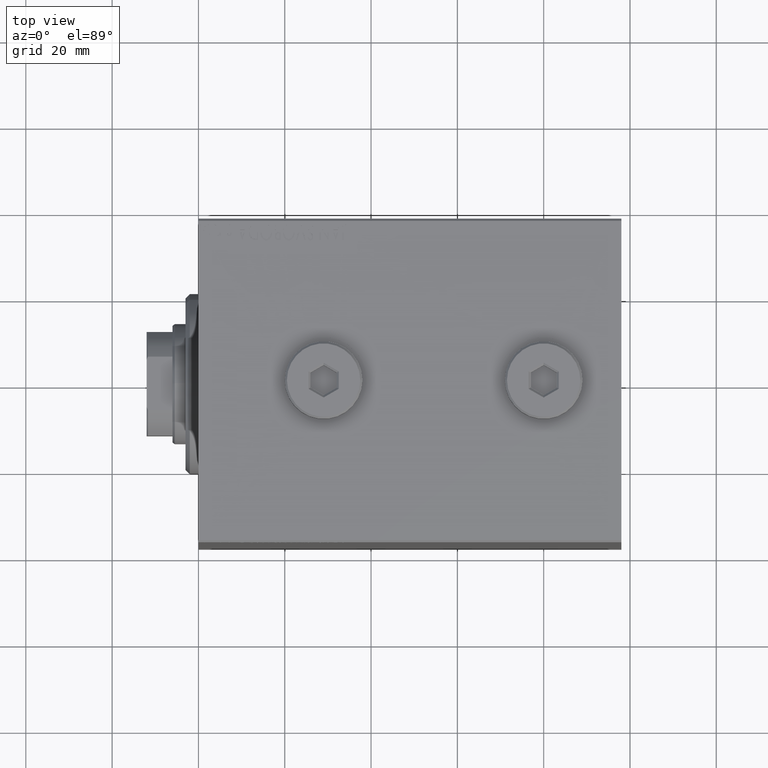
[diagram: clean part render]
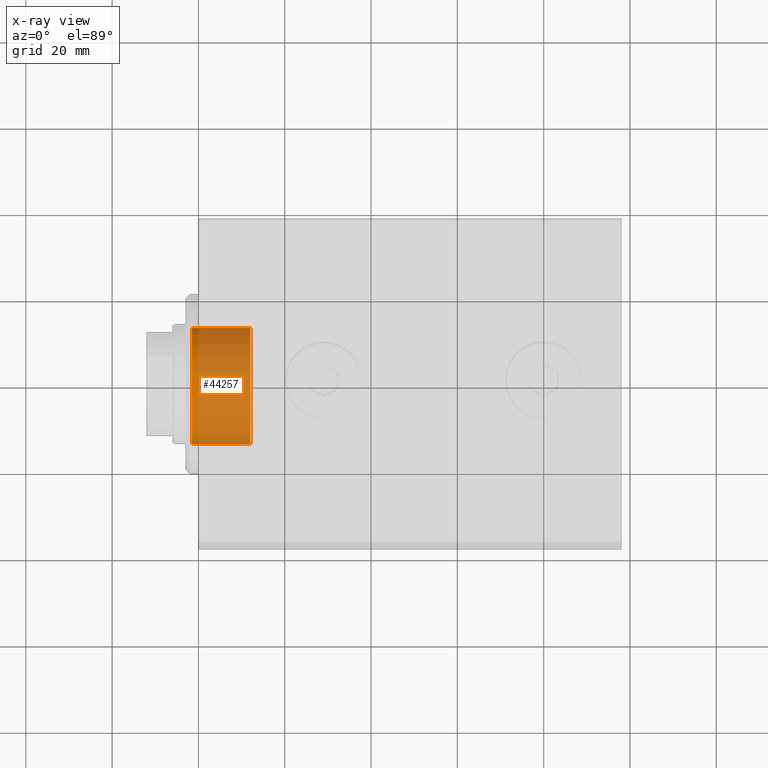
[diagram: x-ray — body ghosted, one internal face saturated and labeled with its STEP entity id]
A machine part, top view, then the same camera in x-ray: the body is ghosted and one INTERNAL B-rep face — a face not visible from any outside direction — is saturated and labeled: STEP entity #44257.
In plain terms, the highlighted cylindrical surface (partial cylindrical patch) has radius 14 mm, axis along (-1, 0, 0).
Its self-contained STEP definition (entity closure, byte-faithful):
#44 = CYLINDRICAL_SURFACE ( 'NONE', #8349, 14.00000000000000178 ) ;
#467 = VERTEX_POINT ( 'NONE', #27096 ) ;
#1929 = VECTOR ( 'NONE', #39252, 1000.000000000000000 ) ;
#2965 = CARTESIAN_POINT ( 'NONE',  ( -12.00000000000000000, 0.000000000000000000, -14.00000000000000178 ) ) ;
#4847 = LINE ( 'NONE', #25502, #1929 ) ;
#5629 = DIRECTION ( 'NONE',  ( 0.000000000000000000, 0.000000000000000000, -1.000000000000000000 ) ) ;
#6787 = AXIS2_PLACEMENT_3D ( 'NONE', #37075, #29736, #22410 ) ;
#7843 = ORIENTED_EDGE ( 'NONE', *, *, #23635, .F. ) ;
#8349 = AXIS2_PLACEMENT_3D ( 'NONE', #10779, #28218, #11223 ) ;
#10779 = CARTESIAN_POINT ( 'NONE',  ( -12.00000000000000000, 0.000000000000000000, 0.000000000000000000 ) ) ;
#10837 = EDGE_CURVE ( 'NONE', #16862, #36233, #31892, .T. ) ;
#11223 = DIRECTION ( 'NONE',  ( 0.000000000000000000, 0.000000000000000000, -1.000000000000000000 ) ) ;
#11398 = AXIS2_PLACEMENT_3D ( 'NONE', #26494, #26725, #5629 ) ;
#13039 = ORIENTED_EDGE ( 'NONE', *, *, #36339, .T. ) ;
#16169 = EDGE_CURVE ( 'NONE', #16862, #467, #4847, .T. ) ;
#16862 = VERTEX_POINT ( 'NONE', #20777 ) ;
#18359 = FACE_OUTER_BOUND ( 'NONE', #29569, .T. ) ;
#18709 = ORIENTED_EDGE ( 'NONE', *, *, #16169, .T. ) ;
#20124 = LINE ( 'NONE', #20357, #40930 ) ;
#20357 = CARTESIAN_POINT ( 'NONE',  ( -12.00000000000000000, 0.000000000000000000, -14.00000000000000178 ) ) ;
#20777 = CARTESIAN_POINT ( 'NONE',  ( -12.00000000000000000, 1.714505518806294835E-15, 14.00000000000000178 ) ) ;
#22410 = DIRECTION ( 'NONE',  ( 0.000000000000000000, 0.000000000000000000, -1.000000000000000000 ) ) ;
#22941 = CIRCLE ( 'NONE', #6787, 14.00000000000000178 ) ;
#23635 = EDGE_CURVE ( 'NONE', #36233, #43068, #20124, .T. ) ;
#24310 = ORIENTED_EDGE ( 'NONE', *, *, #10837, .F. ) ;
#25502 = CARTESIAN_POINT ( 'NONE',  ( -12.00000000000000000, 1.714505518806294835E-15, 14.00000000000000178 ) ) ;
#26494 = CARTESIAN_POINT ( 'NONE',  ( -12.00000000000000000, 0.000000000000000000, 0.000000000000000000 ) ) ;
#26725 = DIRECTION ( 'NONE',  ( 1.000000000000000000, 0.000000000000000000, 0.000000000000000000 ) ) ;
#27096 = CARTESIAN_POINT ( 'NONE',  ( 1.499999999999999556, 1.714505518806294835E-15, 14.00000000000000178 ) ) ;
#27599 = CARTESIAN_POINT ( 'NONE',  ( 1.499999999999999556, 0.000000000000000000, -14.00000000000000178 ) ) ;
#28218 = DIRECTION ( 'NONE',  ( 1.000000000000000000, -0.000000000000000000, -0.000000000000000000 ) ) ;
#29569 = EDGE_LOOP ( 'NONE', ( #24310, #18709, #13039, #7843 ) ) ;
#29736 = DIRECTION ( 'NONE',  ( 1.000000000000000000, 0.000000000000000000, 0.000000000000000000 ) ) ;
#31892 = CIRCLE ( 'NONE', #11398, 14.00000000000000178 ) ;
#36233 = VERTEX_POINT ( 'NONE', #2965 ) ;
#36339 = EDGE_CURVE ( 'NONE', #467, #43068, #22941, .T. ) ;
#37075 = CARTESIAN_POINT ( 'NONE',  ( 1.499999999999999556, 0.000000000000000000, 0.000000000000000000 ) ) ;
#39252 = DIRECTION ( 'NONE',  ( 1.000000000000000000, -0.000000000000000000, -0.000000000000000000 ) ) ;
#40930 = VECTOR ( 'NONE', #41198, 1000.000000000000000 ) ;
#41198 = DIRECTION ( 'NONE',  ( 1.000000000000000000, -0.000000000000000000, -0.000000000000000000 ) ) ;
#43068 = VERTEX_POINT ( 'NONE', #27599 ) ;
#44257 = ADVANCED_FACE ( 'NONE', ( #18359 ), #44, .F. ) ;